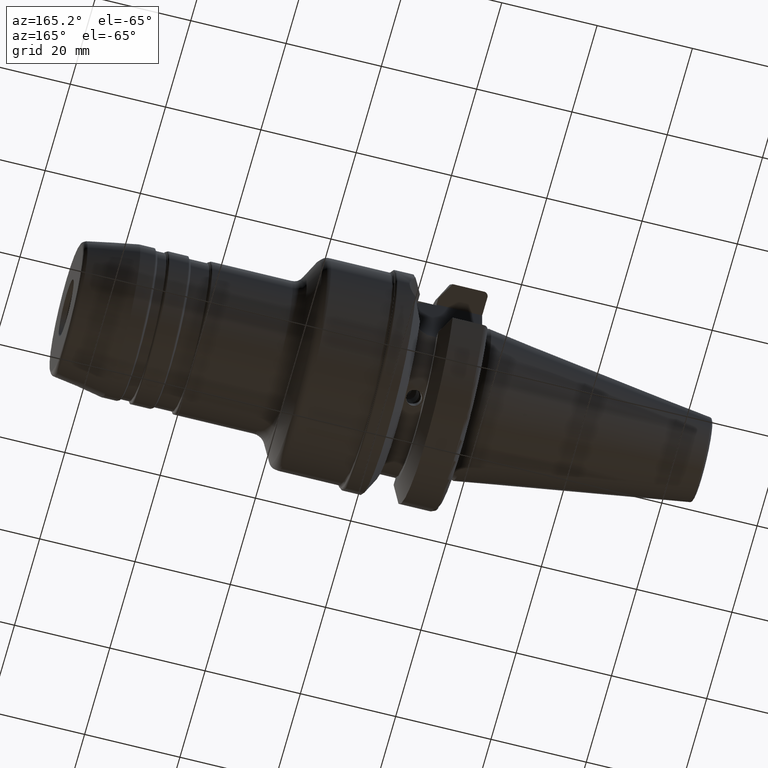
[diagram: clean part render]
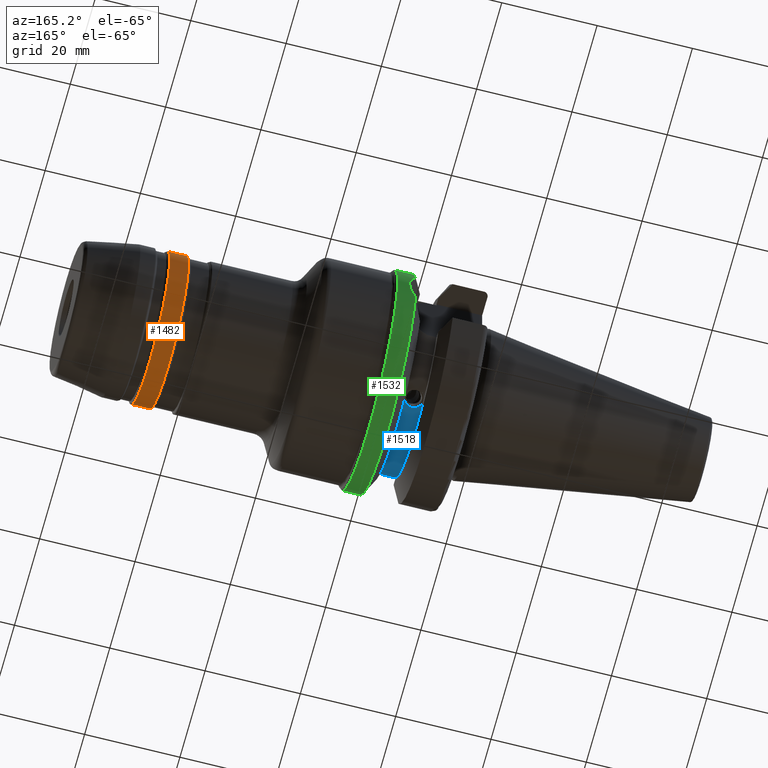
[diagram: same view with three faces highlighted in distinct colors, each labeled with its STEP entity id]
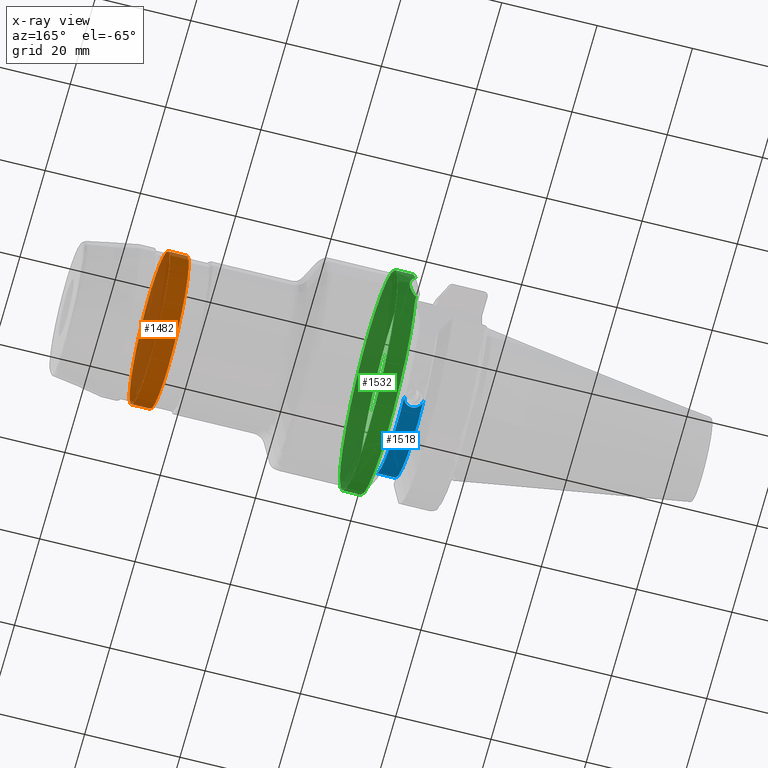
[diagram: x-ray of the same camera — body ghosted, the three highlighted faces saturated]
A machine part, auxiliary view with three faces highlighted in distinct colors.
The next image is the same camera in x-ray (body ghosted, the three faces saturated) — at least one of them is partly hidden behind the body in this view.
Their STEP definitions:

[orange] entity #1482 — the highlighted cylindrical surface (bore or boss wall) has radius 16 mm, axis along (1, 0, 0).
#124=LINE('',#2377,#197);
#197=VECTOR('',#1885,16.);
#266=CYLINDRICAL_SURFACE('',#1619,16.);
#314=FACE_OUTER_BOUND('',#407,.T.);
#407=EDGE_LOOP('',(#1034,#1035,#1036,#1037));
#517=CIRCLE('',#1617,16.);
#519=CIRCLE('',#1620,16.);
#618=VERTEX_POINT('',#2371);
#619=VERTEX_POINT('',#2375);
#774=EDGE_CURVE('',#618,#618,#517,.T.);
#776=EDGE_CURVE('',#619,#619,#519,.T.);
#777=EDGE_CURVE('',#619,#618,#124,.T.);
#1034=ORIENTED_EDGE('',*,*,#776,.F.);
#1035=ORIENTED_EDGE('',*,*,#777,.T.);
#1036=ORIENTED_EDGE('',*,*,#774,.F.);
#1037=ORIENTED_EDGE('',*,*,#777,.F.);
#1482=ADVANCED_FACE('',(#314),#266,.T.);
#1617=AXIS2_PLACEMENT_3D('',#2372,#1877,#1878);
#1619=AXIS2_PLACEMENT_3D('',#2374,#1881,#1882);
#1620=AXIS2_PLACEMENT_3D('',#2376,#1883,#1884);
#1877=DIRECTION('center_axis',(-1.,0.,0.));
#1878=DIRECTION('ref_axis',(0.,1.22464679914735E-16,1.));
#1881=DIRECTION('center_axis',(1.,0.,0.));
#1882=DIRECTION('ref_axis',(0.,0.,-1.));
#1883=DIRECTION('center_axis',(1.,0.,0.));
#1884=DIRECTION('ref_axis',(0.,1.22464679914735E-16,1.));
#1885=DIRECTION('',(-1.,0.,0.));
#2371=CARTESIAN_POINT('',(63.5196152422707,-1.95943487863576E-15,16.));
#2372=CARTESIAN_POINT('Origin',(63.5196152422707,0.,0.));
#2374=CARTESIAN_POINT('Origin',(65.5,0.,0.));
#2375=CARTESIAN_POINT('',(67.4803847577293,-1.95943487863576E-15,16.));
#2376=CARTESIAN_POINT('Origin',(67.4803847577293,0.,0.));
#2377=CARTESIAN_POINT('',(65.5,-1.95943487863576E-15,16.));

[blue] entity #1518 — the highlighted cylindrical surface (partial cylindrical patch) has radius 18 mm, axis along (1, 0, 0).
#52=B_SPLINE_CURVE_WITH_KNOTS('',3,(#2713,#2714,#2715,#2716,#2717,#2718,
#2719,#2720,#2721,#2722,#2723,#2724,#2725,#2726,#2727,#2728,#2729,#2730),
 .UNSPECIFIED.,.F.,.F.,(4,2,2,2,2,2,2,2,4),(0.301616805591308,0.377020810963282,
0.452424816335256,0.527829213758936,0.603233611182616,0.678638008606296,
0.754042406029977,0.829446411401951,0.904850416773924),.UNSPECIFIED.);
#55=B_SPLINE_CURVE_WITH_KNOTS('',3,(#2768,#2769,#2770,#2771,#2772,#2773),
 .UNSPECIFIED.,.F.,.F.,(4,2,4),(1.98446312068074,2.15608509331101,2.21265100898607),
 .UNSPECIFIED.);
#147=LINE('',#2775,#220);
#220=VECTOR('',#2100,10.);
#285=CYLINDRICAL_SURFACE('',#1715,18.);
#350=FACE_OUTER_BOUND('',#450,.T.);
#450=EDGE_LOOP('',(#1207,#1208,#1209,#1210,#1211));
#561=CIRCLE('',#1716,18.);
#562=CIRCLE('',#1717,18.);
#679=VERTEX_POINT('',#2710);
#680=VERTEX_POINT('',#2712);
#684=VERTEX_POINT('',#2765);
#685=VERTEX_POINT('',#2767);
#686=VERTEX_POINT('',#2774);
#869=EDGE_CURVE('',#680,#679,#52,.T.);
#875=EDGE_CURVE('',#684,#679,#561,.T.);
#876=EDGE_CURVE('',#684,#685,#55,.T.);
#877=EDGE_CURVE('',#685,#686,#147,.T.);
#878=EDGE_CURVE('',#686,#680,#562,.T.);
#1207=ORIENTED_EDGE('',*,*,#869,.T.);
#1208=ORIENTED_EDGE('',*,*,#875,.F.);
#1209=ORIENTED_EDGE('',*,*,#876,.T.);
#1210=ORIENTED_EDGE('',*,*,#877,.T.);
#1211=ORIENTED_EDGE('',*,*,#878,.T.);
#1518=ADVANCED_FACE('',(#350),#285,.T.);
#1715=AXIS2_PLACEMENT_3D('',#2764,#2096,#2097);
#1716=AXIS2_PLACEMENT_3D('',#2766,#2098,#2099);
#1717=AXIS2_PLACEMENT_3D('',#2776,#2101,#2102);
#2096=DIRECTION('center_axis',(1.,1.62798202122572E-21,0.));
#2097=DIRECTION('ref_axis',(0.,1.,0.));
#2098=DIRECTION('center_axis',(1.,1.62798202122572E-21,0.));
#2099=DIRECTION('ref_axis',(0.,0.,-1.));
#2100=DIRECTION('',(-1.,-1.62798202122572E-21,0.));
#2101=DIRECTION('center_axis',(1.,1.62798202122572E-21,0.));
#2102=DIRECTION('ref_axis',(0.,0.,-1.));
#2710=CARTESIAN_POINT('',(15.6,6.15636257986204,-16.9144671741463));
#2712=CARTESIAN_POINT('',(11.6,6.15636257986204,-16.9144671741463));
#2713=CARTESIAN_POINT('Ctrl Pts',(11.6,6.15636257986204,-16.9144671741463));
#2714=CARTESIAN_POINT('Ctrl Pts',(11.6,5.92017395510955,-17.0004328032285));
#2715=CARTESIAN_POINT('Ctrl Pts',(11.6502741541558,5.66638994445906,-17.0866270171134));
#2716=CARTESIAN_POINT('Ctrl Pts',(11.8544462906484,5.19623089225241,-17.2354281159616));
#2717=CARTESIAN_POINT('Ctrl Pts',(12.0083328280156,4.97994110148113,-17.2983199183638));
#2718=CARTESIAN_POINT('Ctrl Pts',(12.3632409698814,4.63687000353515,-17.3934218103306));
#2719=CARTESIAN_POINT('Ctrl Pts',(12.587996750585,4.48716279851813,-17.4320366703388));
#2720=CARTESIAN_POINT('Ctrl Pts',(13.08069335908,4.28809828983861,-17.4820692588007));
#2721=CARTESIAN_POINT('Ctrl Pts',(13.3486520085877,4.23885707963151,-17.4937729109091));
#2722=CARTESIAN_POINT('Ctrl Pts',(13.8513479914123,4.23885707963151,-17.4937729109091));
#2723=CARTESIAN_POINT('Ctrl Pts',(14.1193066409199,4.28809828983861,-17.4820692588007));
#2724=CARTESIAN_POINT('Ctrl Pts',(14.6120032494149,4.48716279851813,-17.4320366703388));
#2725=CARTESIAN_POINT('Ctrl Pts',(14.8367590301186,4.63687000353515,-17.3934218103306));
#2726=CARTESIAN_POINT('Ctrl Pts',(15.1916671719844,4.97994110148114,-17.2983199183638));
#2727=CARTESIAN_POINT('Ctrl Pts',(15.3455537093516,5.19623089225241,-17.2354281159616));
#2728=CARTESIAN_POINT('Ctrl Pts',(15.5497258458442,5.66638994445906,-17.0866270171134));
#2729=CARTESIAN_POINT('Ctrl Pts',(15.6,5.92017395510956,-17.0004328032285));
#2730=CARTESIAN_POINT('Ctrl Pts',(15.6,6.15636257986204,-16.9144671741463));
#2764=CARTESIAN_POINT('Origin',(13.6,2.08175771018334E-15,0.));
#2765=CARTESIAN_POINT('',(15.6,-16.757684804292,-6.57114906237867));
#2766=CARTESIAN_POINT('Origin',(15.6,2.08176096614738E-15,0.));
#2767=CARTESIAN_POINT('',(13.4980384612482,-16.3,-7.636098480245));
#2768=CARTESIAN_POINT('Ctrl Pts',(15.6,-16.757684804292,-6.57114906237867));
#2769=CARTESIAN_POINT('Ctrl Pts',(15.1240022455652,-16.6256027426008,-6.90798353944051));
#2770=CARTESIAN_POINT('Ctrl Pts',(14.6012065414299,-16.4995936761885,-7.19909968210666));
#2771=CARTESIAN_POINT('Ctrl Pts',(13.8692695970121,-16.3611703468843,-7.5045998651608));
#2772=CARTESIAN_POINT('Ctrl Pts',(13.6847796623189,-16.329191641879,-7.57378606195196));
#2773=CARTESIAN_POINT('Ctrl Pts',(13.4980384612482,-16.3,-7.636098480245));
#2774=CARTESIAN_POINT('',(11.6,-16.3,-7.636098480245));
#2775=CARTESIAN_POINT('',(13.6,-16.3,-7.63609848024499));
#2776=CARTESIAN_POINT('Origin',(11.6,2.08175445421929E-15,0.));

[green] entity #1532 — the highlighted cylindrical surface (bore or boss wall) has radius 23 mm, axis along (1, 0, 0).
#60=B_SPLINE_CURVE_WITH_KNOTS('',3,(#2872,#2873,#2874,#2875,#2876,#2877),
 .UNSPECIFIED.,.F.,.F.,(4,2,4),(1.22422978521585,1.53019992929475,1.68242086035696),
 .UNSPECIFIED.);
#61=B_SPLINE_CURVE_WITH_KNOTS('',3,(#2879,#2880,#2881,#2882,#2883,#2884),
 .UNSPECIFIED.,.F.,.F.,(4,2,4),(0.766038710074735,0.918259641136944,1.22422978521585),
 .UNSPECIFIED.);
#64=B_SPLINE_CURVE_WITH_KNOTS('',3,(#2930,#2931,#2932,#2933,#2934,#2935,
#2936,#2937,#2938,#2939),.UNSPECIFIED.,.F.,.F.,(4,2,2,2,4),(3.21449828050643,
3.36671921156864,3.67268935564754,3.97865949972644,4.13088043078865),
 .UNSPECIFIED.);
#171=LINE('',#2926,#244);
#244=VECTOR('',#2180,23.);
#292=CYLINDRICAL_SURFACE('',#1743,23.);
#364=FACE_OUTER_BOUND('',#466,.T.);
#466=EDGE_LOOP('',(#1294,#1295,#1296,#1297,#1298,#1299,#1300,#1301,#1302));
#573=CIRCLE('',#1744,23.);
#574=CIRCLE('',#1745,23.);
#575=CIRCLE('',#1746,23.);
#576=CIRCLE('',#1747,23.);
#711=VERTEX_POINT('',#2864);
#712=VERTEX_POINT('',#2871);
#713=VERTEX_POINT('',#2878);
#718=VERTEX_POINT('',#2923);
#719=VERTEX_POINT('',#2924);
#720=VERTEX_POINT('',#2927);
#721=VERTEX_POINT('',#2929);
#910=EDGE_CURVE('',#712,#711,#60,.T.);
#911=EDGE_CURVE('',#713,#712,#61,.T.);
#924=EDGE_CURVE('',#718,#719,#573,.T.);
#925=EDGE_CURVE('',#718,#712,#171,.T.);
#926=EDGE_CURVE('',#711,#720,#574,.T.);
#927=EDGE_CURVE('',#720,#721,#64,.T.);
#928=EDGE_CURVE('',#721,#713,#575,.T.);
#929=EDGE_CURVE('',#719,#718,#576,.T.);
#1294=ORIENTED_EDGE('',*,*,#924,.F.);
#1295=ORIENTED_EDGE('',*,*,#925,.T.);
#1296=ORIENTED_EDGE('',*,*,#910,.T.);
#1297=ORIENTED_EDGE('',*,*,#926,.T.);
#1298=ORIENTED_EDGE('',*,*,#927,.T.);
#1299=ORIENTED_EDGE('',*,*,#928,.T.);
#1300=ORIENTED_EDGE('',*,*,#911,.T.);
#1301=ORIENTED_EDGE('',*,*,#925,.F.);
#1302=ORIENTED_EDGE('',*,*,#929,.F.);
#1532=ADVANCED_FACE('',(#364),#292,.T.);
#1743=AXIS2_PLACEMENT_3D('',#2922,#2176,#2177);
#1744=AXIS2_PLACEMENT_3D('',#2925,#2178,#2179);
#1745=AXIS2_PLACEMENT_3D('',#2928,#2181,#2182);
#1746=AXIS2_PLACEMENT_3D('',#2940,#2183,#2184);
#1747=AXIS2_PLACEMENT_3D('',#2941,#2185,#2186);
#2176=DIRECTION('center_axis',(1.,1.62798202122572E-21,0.));
#2177=DIRECTION('ref_axis',(0.,1.,0.));
#2178=DIRECTION('center_axis',(1.,1.62798202122572E-21,0.));
#2179=DIRECTION('ref_axis',(0.,0.,-1.));
#2180=DIRECTION('',(-1.,-1.62798202122572E-21,0.));
#2181=DIRECTION('center_axis',(1.,1.62798202122572E-21,0.));
#2182=DIRECTION('ref_axis',(0.,0.,-1.));
#2183=DIRECTION('center_axis',(1.,1.62798202122572E-21,0.));
#2184=DIRECTION('ref_axis',(0.,0.,-1.));
#2185=DIRECTION('center_axis',(1.,1.62798202122572E-21,0.));
#2186=DIRECTION('ref_axis',(0.,0.,-1.));
#2864=CARTESIAN_POINT('',(17.6299409595063,-22.5570191120744,-4.49231441213885));
#2871=CARTESIAN_POINT('',(19.,-23.,-2.10223320941018E-15));
#2872=CARTESIAN_POINT('Ctrl Pts',(19.,-23.,-1.38777878078145E-15));
#2873=CARTESIAN_POINT('Ctrl Pts',(19.,-23.,-1.01990048026301));
#2874=CARTESIAN_POINT('Ctrl Pts',(18.7944172124482,-22.9255444052516,-2.10203503507381));
#2875=CARTESIAN_POINT('Ctrl Pts',(18.177239764242,-22.7242805076598,-3.58529925507118));
#2876=CARTESIAN_POINT('Ctrl Pts',(17.9228644767949,-22.6437642529734,-4.05674565589789));
#2877=CARTESIAN_POINT('Ctrl Pts',(17.6299409595063,-22.5570191120744,-4.49231441213885));
#2878=CARTESIAN_POINT('',(17.6299409595063,-22.5570191120744,4.49231441213885));
#2879=CARTESIAN_POINT('Ctrl Pts',(17.6299409595063,-22.5570191120744,4.49231441213885));
#2880=CARTESIAN_POINT('Ctrl Pts',(17.9228644767949,-22.6437642529734,4.05674565589789));
#2881=CARTESIAN_POINT('Ctrl Pts',(18.177239764242,-22.7242805076598,3.58529925507118));
#2882=CARTESIAN_POINT('Ctrl Pts',(18.7944172124482,-22.9255444052516,2.10203503507381));
#2883=CARTESIAN_POINT('Ctrl Pts',(19.,-23.,1.01990048026301));
#2884=CARTESIAN_POINT('Ctrl Pts',(19.,-23.,-1.38777878078145E-15));
#2922=CARTESIAN_POINT('Origin',(19.5649704797531,2.08176742104803E-15,0.));
#2923=CARTESIAN_POINT('',(21.5,-23.,-2.81668763803891E-15));
#2924=CARTESIAN_POINT('',(21.5,-7.34917066797608E-16,23.));
#2925=CARTESIAN_POINT('Origin',(21.5,2.0817705712413E-15,0.));
#2926=CARTESIAN_POINT('',(19.5649704797531,-23.,-2.81668763803891E-15));
#2927=CARTESIAN_POINT('',(17.6299409595063,22.5570191120744,-4.49231441213885));
#2928=CARTESIAN_POINT('Origin',(17.6299409595063,2.08176427085476E-15,0.));
#2929=CARTESIAN_POINT('',(17.6299409595063,22.5570191120744,4.49231441213885));
#2930=CARTESIAN_POINT('Ctrl Pts',(17.6299409595063,22.5570191120744,-4.49231441213886));
#2931=CARTESIAN_POINT('Ctrl Pts',(17.9228644767949,22.6437642529734,-4.05674565589789));
#2932=CARTESIAN_POINT('Ctrl Pts',(18.177239764242,22.7242805076598,-3.58529925507119));
#2933=CARTESIAN_POINT('Ctrl Pts',(18.7944172124482,22.9255444052516,-2.10203503507382));
#2934=CARTESIAN_POINT('Ctrl Pts',(19.,23.,-1.01990048026301));
#2935=CARTESIAN_POINT('Ctrl Pts',(19.,23.,1.01990048026301));
#2936=CARTESIAN_POINT('Ctrl Pts',(18.7944172124482,22.9255444052516,2.10203503507381));
#2937=CARTESIAN_POINT('Ctrl Pts',(18.177239764242,22.7242805076598,3.58529925507119));
#2938=CARTESIAN_POINT('Ctrl Pts',(17.9228644767949,22.6437642529734,4.05674565589789));
#2939=CARTESIAN_POINT('Ctrl Pts',(17.6299409595063,22.5570191120744,4.49231441213886));
#2940=CARTESIAN_POINT('Origin',(17.6299409595063,2.08176427085476E-15,0.));
#2941=CARTESIAN_POINT('Origin',(21.5,2.0817705712413E-15,0.));